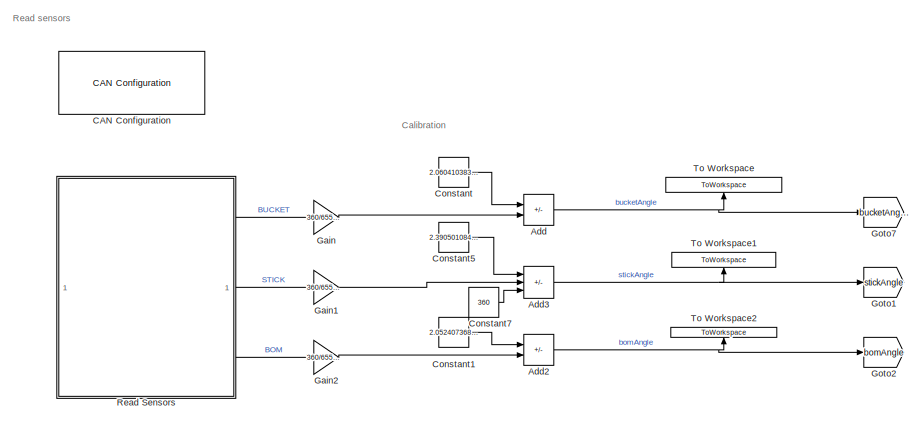
[diagram: root canvas - part 1/8, top left region]
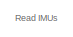
[diagram: root canvas - part 2/8, top right region]
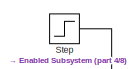
[diagram: root canvas - part 3/8, top right region]
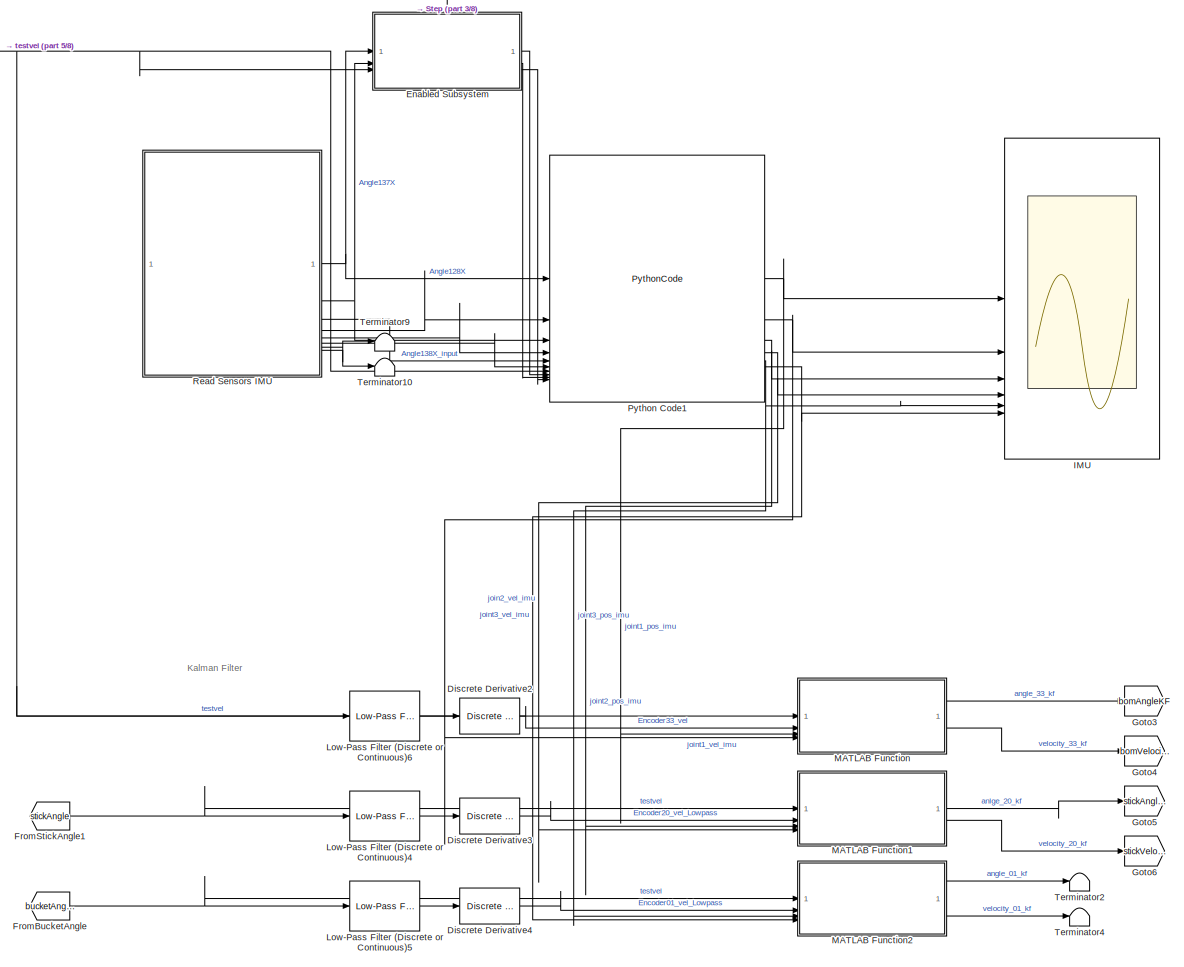
[diagram: root canvas - part 4/8, middle right region]
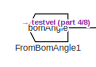
[diagram: root canvas - part 5/8, top center region]
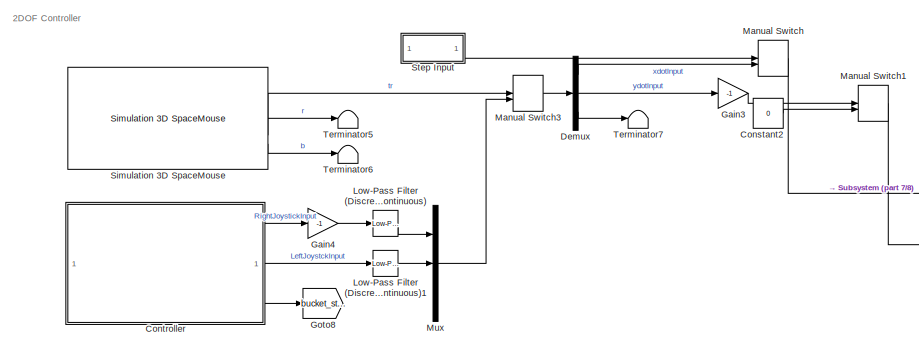
[diagram: root canvas - part 6/8, middle left region]
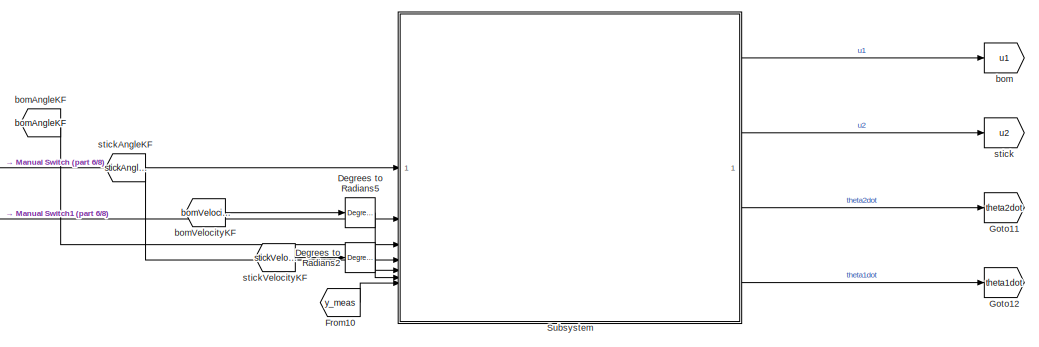
[diagram: root canvas - part 7/8, central region]
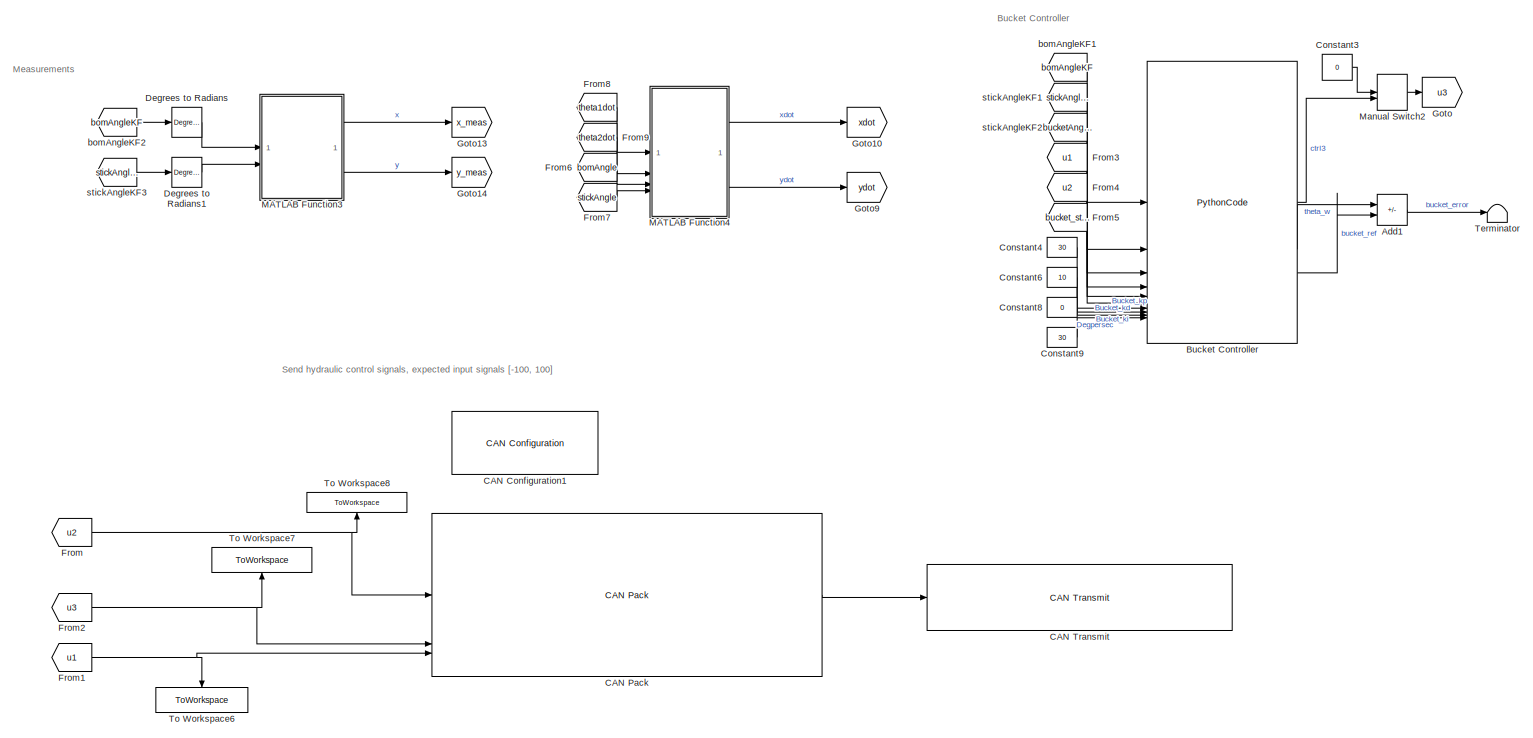
[diagram: root canvas - part 8/8, bottom left region]
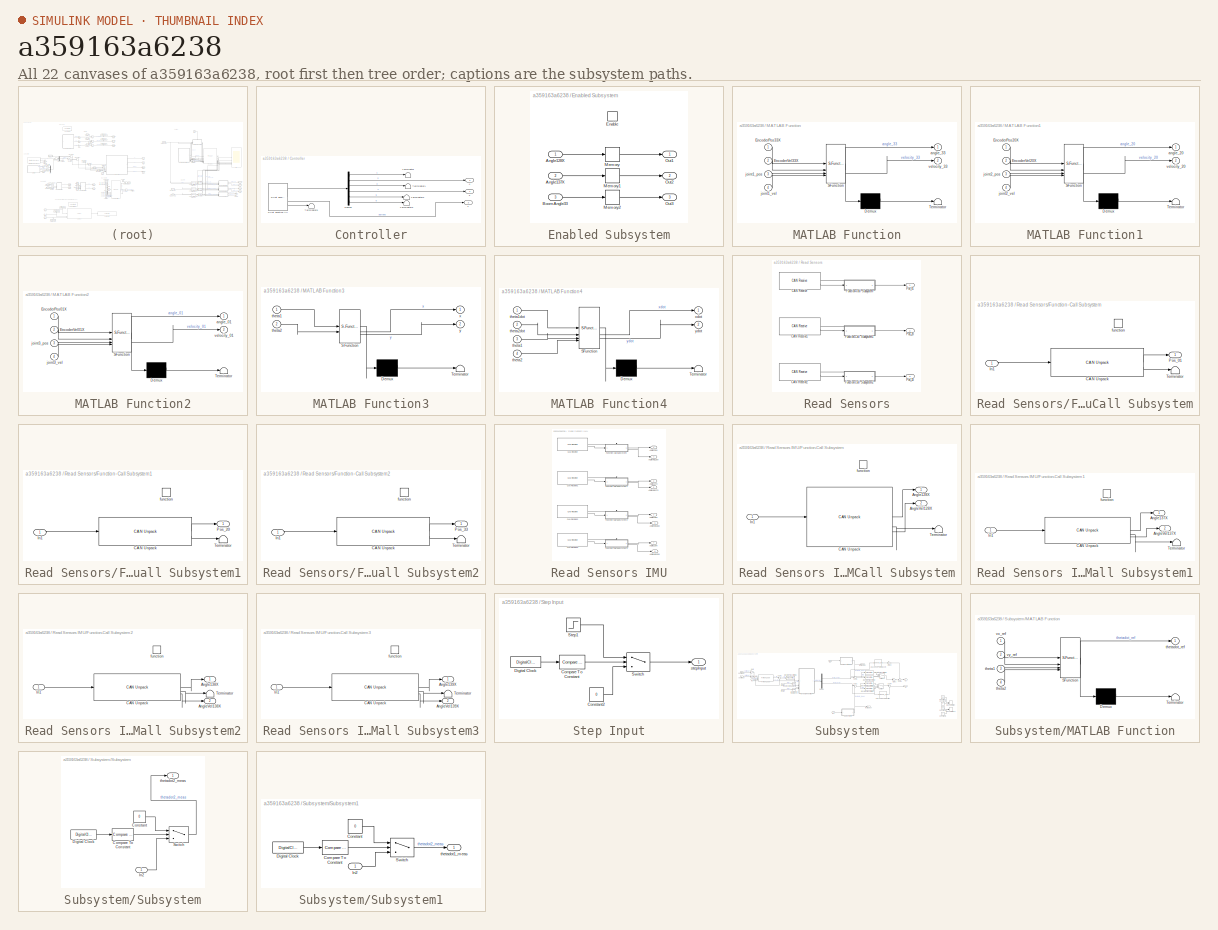
[diagram: thumbnail index - all 22 canvases of the model, root first then tree order]
MODEL slx_a359163a6238
KIND model
CONFIG AbsTol = auto
CONFIG EnableMultiTasking = off
CONFIG FixedStep = auto
CONFIG MaxStep = auto
CONFIG MinStep = auto
CONFIG RelTol = 1e-3
CONFIG SampleTimeConstraint = Unconstrained
CONFIG SolverName = VariableStepAuto
CONFIG StartTime = 0.0
CONFIG StopTime = inf
BLOCK [Sum] Add
  IconShape = rectangular
  Inputs = -+
BLOCK [Sum] Add1
  IconShape = rectangular
  Inputs = +-
BLOCK [Sum] Add2
  IconShape = rectangular
  Inputs = -+
BLOCK [Sum] Add3
  IconShape = rectangular
  Inputs = -++
BLOCK [PythonCode] Bucket Controller
  OutputCode = import numpy as np\nfrom numpy import sign, abs\n\n#### TUNING PARAMETERS\ndegpersec \nTs = 0.01\n\nBUCKET_STICK1 = 16\nBUCKET_STICK2 = 32\nif flag is None:\n    flag = 1\n\n## Bucket Control Parameters\nKp_bucket = Kp\nKi_bucket = Ki\nKd_bucket = Kd\n\n## Bucket controller\ncalc_thetaw = theta1 + theta2 + theta3\n\n\nif theta_ref is None:\n    theta_ref = -20\n\nif comp_flag_1 is None:\n    comp_flag_1 = 0\n\n\nif bucket_st...<+1492ch>
  SampleTime = 0.01
BLOCK [Reference] CAN Configuration  REF=canlib/CAN Configuration
  SourceBlock = canlib/CAN Configuration
  SourceType = CAN Configuration
BLOCK [Reference] CAN Configuration1  REF=canlib/CAN Configuration
  SourceBlock = canlib/CAN Configuration
  SourceType = CAN Configuration
BLOCK [Reference] CAN Pack  REF=canmsglib/CAN Pack
  LibrarySourceBlock = canlib/CAN Pack
  SourceBlock = canmsglib/CAN Pack
  SourceType = CAN Pack
BLOCK [Reference] CAN Transmit  REF=canlib/CAN Transmit
  SourceBlock = canlib/CAN Transmit
  SourceType = CAN Transmit
BLOCK [Constant] Constant
  Value = 2.060410383456638e+02
BLOCK [Constant] Constant1
  Value = 2.052407368979854e+02
BLOCK [Constant] Constant2
  Value = 0
BLOCK [Constant] Constant3
  Value = 0
BLOCK [Constant] Constant4
  Value = 30
BLOCK [Constant] Constant5
  Value = 2.390501084826040e+02+27.5
BLOCK [Constant] Constant6
  Value = 10
BLOCK [Constant] Constant7
  Value = 360
BLOCK [Constant] Constant8
  Value = 0
BLOCK [Constant] Constant9
  Value = 30
BLOCK [SubSystem] Controller
BLOCK [Outport] Controller/1
  IconDisplay = Signal name
  Port = 3
BLOCK [Outport] Controller/2
  IconDisplay = Signal name
BLOCK [Outport] Controller/4
  IconDisplay = Signal name
  Port = 2
BLOCK [Demux] Controller/Demux
  Outputs = 6
BLOCK [Reference] Controller/Pilot Joystick All  REF=aerolibanimutils/Pilot Joystick
  LibrarySourceBlock = aerolibanimutils/Pilot Joystick All
  SourceBlock = aerolibanimutils/Pilot Joystick
  SourceType = PilotJoystick
BLOCK [Terminator] Controller/Terminator
BLOCK [Terminator] Controller/Terminator1
BLOCK [Terminator] Controller/Terminator2
BLOCK [Terminator] Controller/Terminator3
BLOCK [Terminator] Controller/Terminator5
BLOCK [Reference] Degrees to Radians  REF=simulink_extras/Transformations/Degrees to
Radians
  SourceBlock = simulink_extras/Transformations/Degrees to\nRadians
  SourceType = DegreesToRadians
BLOCK [Reference] Degrees to Radians1  REF=simulink_extras/Transformations/Degrees to
Radians
  SourceBlock = simulink_extras/Transformations/Degrees to\nRadians
  SourceType = DegreesToRadians
BLOCK [Reference] Degrees to Radians2  REF=simulink_extras/Transformations/Degrees to
Radians
  SourceBlock = simulink_extras/Transformations/Degrees to\nRadians
  SourceType = DegreesToRadians
BLOCK [Reference] Degrees to Radians5  REF=simulink_extras/Transformations/Degrees to
Radians
  SourceBlock = simulink_extras/Transformations/Degrees to\nRadians
  SourceType = DegreesToRadians
BLOCK [Demux] Demux
  Outputs = 3
BLOCK [Reference] Discrete Derivative2  REF=simulink/Discrete/Discrete Derivative
  SourceBlock = simulink/Discrete/Discrete Derivative
  SourceType = Discrete Derivative
BLOCK [Reference] Discrete Derivative3  REF=simulink/Discrete/Discrete Derivative
  SourceBlock = simulink/Discrete/Discrete Derivative
  SourceType = Discrete Derivative
BLOCK [Reference] Discrete Derivative4  REF=simulink/Discrete/Discrete Derivative
  SourceBlock = simulink/Discrete/Discrete Derivative
  SourceType = Discrete Derivative
BLOCK [SubSystem] Enabled Subsystem
  TreatAsAtomicUnit = on
BLOCK [Inport] Enabled Subsystem/Angle128X
BLOCK [Inport] Enabled Subsystem/Angle137X
  Port = 2
BLOCK [Inport] Enabled Subsystem/BoomAngle33
  Port = 3
BLOCK [EnablePort] Enabled Subsystem/Enable
BLOCK [Memory] Enabled Subsystem/Memory
BLOCK [Memory] Enabled Subsystem/Memory1
BLOCK [Memory] Enabled Subsystem/Memory2
BLOCK [Outport] Enabled Subsystem/Out1
BLOCK [Outport] Enabled Subsystem/Out2
  Port = 2
BLOCK [Outport] Enabled Subsystem/Out3
  Port = 3
BLOCK [From] From
  GotoTag = u2
BLOCK [From] From1
  GotoTag = u1
BLOCK [From] From10
  GotoTag = y_meas
BLOCK [From] From2
  GotoTag = u3
BLOCK [From] From3
  GotoTag = u1
BLOCK [From] From4
  GotoTag = u2
BLOCK [From] From5
  GotoTag = bucket_stick_signal
BLOCK [From] From6
  GotoTag = bomAngle
BLOCK [From] From7
  GotoTag = stickAngle
BLOCK [From] From8
  GotoTag = theta1dot
BLOCK [From] From9
  GotoTag = theta2dot
BLOCK [From] FromBomAngle1
  GotoTag = bomAngle
BLOCK [From] FromBucketAngle
  GotoTag = bucketAngle
BLOCK [From] FromStickAngle1
  GotoTag = stickAngle
BLOCK [Gain] Gain
  Gain = 360/65535
BLOCK [Gain] Gain1
  Gain = 360/65535
BLOCK [Gain] Gain2
  Gain = 360/65535
BLOCK [Gain] Gain3
  Gain = -1
BLOCK [Gain] Gain4
  Gain = -1
BLOCK [Goto] Goto
  GotoTag = u3
BLOCK [Goto] Goto1
  GotoTag = stickAngle
BLOCK [Goto] Goto10
  GotoTag = xdot
BLOCK [Goto] Goto11
  GotoTag = theta2dot
BLOCK [Goto] Goto12
  GotoTag = theta1dot
BLOCK [Goto] Goto13
  GotoTag = x_meas
BLOCK [Goto] Goto14
  GotoTag = y_meas
BLOCK [Goto] Goto2
  GotoTag = bomAngle
BLOCK [Goto] Goto3
  GotoTag = bomAngleKF
BLOCK [Goto] Goto4
  GotoTag = bomVelocityKF
BLOCK [Goto] Goto5
  GotoTag = stickAngleKF
BLOCK [Goto] Goto6
  GotoTag = stickVelocityKF
BLOCK [Goto] Goto7
  GotoTag = bucketAngle
BLOCK [Goto] Goto8
  GotoTag = bucket_stick_signal
BLOCK [Goto] Goto9
  GotoTag = ydot
BLOCK [Scope] IMU
  ActiveDisplayYMaximum = 241.62685406904103
  ActiveDisplayYMinimum = 240.03476604985391
  Floating = off
  GraphicalSettings = {"AxesScalingProperties":{"AlignXAxis":"Center","AlignYAxis":"Center","AutoScaleXAxisLimits":false,"AxesScaling":"Manual","AxesScalingNumUpdates":10,"ExpandOnly":true,"ScaleAxesLimitsAtStop":false,"XAxisDataRange":100,"YAxisDataRange":80},"DisplayProperties":{"ColorOrder":["auto","auto","auto","auto","auto","auto","auto","auto","auto","auto","auto","auto","auto","auto","auto","auto","auto","auto",...<+2549ch>
  MultipleDisplayCache = [{"MaxYLimMag":271.3765664312109,"MaxYLimReal":241.62685406904103,"MinYLimMag":0,"MinYLimReal":240.03476604985391,"PlotAsMagnitudePhase":false,"ShowGrid":true,"ShowLegend":false,"Title":"%<SignalLabel>","YLabel":""}]
  NumInputPorts = 6
  ScopeFrameLocation = window
  WasSavedAsWebScope = on
  WindowPosition = [601.000000,310.000000,1414.000000,726.000000,]
BLOCK [Reference] Low-Pass Filter (Discrete or Continuous)  REF=eeGeneralControl/Low-Pass Filter
(Discrete or Continuous)
  LibrarySourceBlock = ee_sl_lib/General Control/Low-Pass Filter\n(Discrete or Continuous)
  SourceBlock = eeGeneralControl/Low-Pass Filter\n(Discrete or Continuous)
  SourceType = Low-Pass Filter (Discrete or Continuous)
BLOCK [Reference] Low-Pass Filter (Discrete or Continuous)1  REF=eeGeneralControl/Low-Pass Filter
(Discrete or Continuous)
  Commented = through
  LibrarySourceBlock = ee_sl_lib/General Control/Low-Pass Filter\n(Discrete or Continuous)
  SourceBlock = eeGeneralControl/Low-Pass Filter\n(Discrete or Continuous)
  SourceType = Low-Pass Filter (Discrete or Continuous)
BLOCK [Reference] Low-Pass Filter (Discrete or Continuous)4  REF=eeGeneralControl/Low-Pass Filter
(Discrete or Continuous)
  LibrarySourceBlock = ee_sl_lib/General Control/Low-Pass Filter\n(Discrete or Continuous)
  SourceBlock = eeGeneralControl/Low-Pass Filter\n(Discrete or Continuous)
  SourceType = Low-Pass Filter (Discrete or Continuous)
BLOCK [Reference] Low-Pass Filter (Discrete or Continuous)5  REF=eeGeneralControl/Low-Pass Filter
(Discrete or Continuous)
  LibrarySourceBlock = ee_sl_lib/General Control/Low-Pass Filter\n(Discrete or Continuous)
  SourceBlock = eeGeneralControl/Low-Pass Filter\n(Discrete or Continuous)
  SourceType = Low-Pass Filter (Discrete or Continuous)
BLOCK [Reference] Low-Pass Filter (Discrete or Continuous)6  REF=eeGeneralControl/Low-Pass Filter
(Discrete or Continuous)
  LibrarySourceBlock = ee_sl_lib/General Control/Low-Pass Filter\n(Discrete or Continuous)
  SourceBlock = eeGeneralControl/Low-Pass Filter\n(Discrete or Continuous)
  SourceType = Low-Pass Filter (Discrete or Continuous)
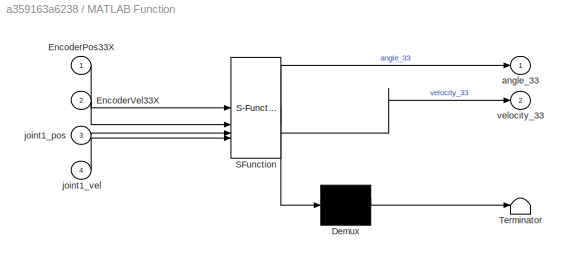
BLOCK [SubSystem] MATLAB Function
  ErrorFcn = Stateflow.Translate.translate
  PermitHierarchicalResolution = ExplicitOnly
  SFBlockType = MATLAB Function
  TreatAsAtomicUnit = on
BLOCK [Demux] MATLAB Function/ Demux 
  Outputs = 1
BLOCK [S-Function] MATLAB Function/ SFunction 
  EnableBusSupport = off
  FunctionName = sf_sfun
  PortCounts = [4 3]
  SFcnIsStateOwnerBlock = off
  SFunctionDeploymentMode = off
  Tag = Stateflow S-Function 2
BLOCK [Terminator] MATLAB Function/ Terminator 
BLOCK [Inport] MATLAB Function/EncoderPos33X
BLOCK [Inport] MATLAB Function/EncoderVel33X
  Port = 2
BLOCK [Outport] MATLAB Function/angle_33
BLOCK [Inport] MATLAB Function/joint1_pos
  Port = 3
BLOCK [Inport] MATLAB Function/joint1_vel
  Port = 4
BLOCK [Outport] MATLAB Function/velocity_33
  Port = 2
BLOCK [SubSystem] MATLAB Function1
  ErrorFcn = Stateflow.Translate.translate
  PermitHierarchicalResolution = ExplicitOnly
  SFBlockType = MATLAB Function
  TreatAsAtomicUnit = on
BLOCK [Demux] MATLAB Function1/ Demux 
  Outputs = 1
BLOCK [S-Function] MATLAB Function1/ SFunction 
  EnableBusSupport = off
  FunctionName = sf_sfun
  PortCounts = [4 3]
  SFcnIsStateOwnerBlock = off
  SFunctionDeploymentMode = off
  Tag = Stateflow S-Function 1
BLOCK [Terminator] MATLAB Function1/ Terminator 
BLOCK [Inport] MATLAB Function1/EncoderPos20X
BLOCK [Inport] MATLAB Function1/EncoderVel20X
  Port = 2
BLOCK [Outport] MATLAB Function1/angle_20
BLOCK [Inport] MATLAB Function1/joint2_pos
  Port = 3
BLOCK [Inport] MATLAB Function1/joint2_vel
  Port = 4
BLOCK [Outport] MATLAB Function1/velocity_20
  Port = 2
BLOCK [SubSystem] MATLAB Function2
  ErrorFcn = Stateflow.Translate.translate
  PermitHierarchicalResolution = ExplicitOnly
  SFBlockType = MATLAB Function
  TreatAsAtomicUnit = on
BLOCK [Demux] MATLAB Function2/ Demux 
  Outputs = 1
BLOCK [S-Function] MATLAB Function2/ SFunction 
  EnableBusSupport = off
  FunctionName = sf_sfun
  PortCounts = [4 3]
  SFcnIsStateOwnerBlock = off
  SFunctionDeploymentMode = off
  Tag = Stateflow S-Function 3
BLOCK [Terminator] MATLAB Function2/ Terminator 
BLOCK [Inport] MATLAB Function2/EncoderPos01X
BLOCK [Inport] MATLAB Function2/EncoderVel01X
  Port = 2
BLOCK [Outport] MATLAB Function2/angle_01
BLOCK [Inport] MATLAB Function2/joint3_pos
  Port = 3
BLOCK [Inport] MATLAB Function2/joint3_vel
  Port = 4
BLOCK [Outport] MATLAB Function2/velocity_01
  Port = 2
BLOCK [SubSystem] MATLAB Function3
  ErrorFcn = Stateflow.Translate.translate
  PermitHierarchicalResolution = ExplicitOnly
  SFBlockType = MATLAB Function
  TreatAsAtomicUnit = on
BLOCK [Demux] MATLAB Function3/ Demux 
  Outputs = 1
BLOCK [S-Function] MATLAB Function3/ SFunction 
  EnableBusSupport = off
  FunctionName = sf_sfun
  PortCounts = [2 3]
  SFcnIsStateOwnerBlock = off
  SFunctionDeploymentMode = off
  Tag = Stateflow S-Function 5
BLOCK [Terminator] MATLAB Function3/ Terminator 
BLOCK [Inport] MATLAB Function3/theta1
BLOCK [Inport] MATLAB Function3/theta2
  Port = 2
BLOCK [Outport] MATLAB Function3/x
BLOCK [Outport] MATLAB Function3/y
  Port = 2
BLOCK [SubSystem] MATLAB Function4
  ErrorFcn = Stateflow.Translate.translate
  PermitHierarchicalResolution = ExplicitOnly
  SFBlockType = MATLAB Function
  TreatAsAtomicUnit = on
BLOCK [Demux] MATLAB Function4/ Demux 
  Outputs = 1
BLOCK [S-Function] MATLAB Function4/ SFunction 
  EnableBusSupport = off
  FunctionName = sf_sfun
  PortCounts = [4 3]
  SFcnIsStateOwnerBlock = off
  SFunctionDeploymentMode = off
  Tag = Stateflow S-Function 6
BLOCK [Terminator] MATLAB Function4/ Terminator 
BLOCK [Inport] MATLAB Function4/theta1
  Port = 3
BLOCK [Inport] MATLAB Function4/theta1dot
BLOCK [Inport] MATLAB Function4/theta2
  Port = 4
BLOCK [Inport] MATLAB Function4/theta2dot
  Port = 2
BLOCK [Outport] MATLAB Function4/xdot
BLOCK [Outport] MATLAB Function4/ydot
  Port = 2
BLOCK [ManualSwitch] Manual Switch
  CurrentSetting = 0
BLOCK [ManualSwitch] Manual Switch1
BLOCK [ManualSwitch] Manual Switch2
  CurrentSetting = 0
BLOCK [ManualSwitch] Manual Switch3
  CurrentSetting = 0
BLOCK [Mux] Mux
  DisplayOption = bar
  Inputs = 3
BLOCK [PythonCode] Python Code1
  OutputCode = # Computation\n\n#print(Angle128X)\n\nif Angle128X > 180:\n    Angle128X = abs(Angle128X) - 360\n    \nif Angle137X < 20:\n    Angle137X = abs(Angle137X)+360\n    \nif Angle138X > 270:\n    Angle138X = abs(Angle138X) - 360\n    \n#print("///")\n#print(Angle128X)\n\nprint(Angle128Xp)\nprint(Angle137Xp)\nprint(Encoder33Xp)\n    \njoint1_pos = Angle137X -270 + Angle128X - (Angle137Xp-270 + Angle128Xp - Encoder33Xp)\njoin...<+159ch>
  SampleTime = 0.01
BLOCK [SubSystem] Read Sensors
BLOCK [SubSystem] Read Sensors IMU
BLOCK [Outport] Read Sensors IMU/Angle128X
BLOCK [Outport] Read Sensors IMU/Angle137X
  Port = 2
BLOCK [Outport] Read Sensors IMU/Angle138X
  Port = 3
BLOCK [Outport] Read Sensors IMU/Angle139X
  Port = 7
BLOCK [Outport] Read Sensors IMU/AngleVel128X
  Port = 4
BLOCK [Outport] Read Sensors IMU/AngleVel137X
  Port = 5
BLOCK [Outport] Read Sensors IMU/AngleVel138X
  Port = 6
BLOCK [Outport] Read Sensors IMU/AngleVel139X
  Port = 8
BLOCK [Reference] Read Sensors IMU/CAN Receive  REF=canlib/CAN Receive
  SourceBlock = canlib/CAN Receive
  SourceType = CAN Receive
BLOCK [Reference] Read Sensors IMU/CAN Receive1  REF=canlib/CAN Receive
  SourceBlock = canlib/CAN Receive
  SourceType = CAN Receive
BLOCK [Reference] Read Sensors IMU/CAN Receive2  REF=canlib/CAN Receive
  SourceBlock = canlib/CAN Receive
  SourceType = CAN Receive
BLOCK [Reference] Read Sensors IMU/CAN Receive3  REF=canlib/CAN Receive
  SourceBlock = canlib/CAN Receive
  SourceType = CAN Receive
BLOCK [SubSystem] Read Sensors IMU/Function-Call Subsystem
  TreatAsAtomicUnit = on
BLOCK [Outport] Read Sensors IMU/Function-Call Subsystem/Angle128X
BLOCK [Outport] Read Sensors IMU/Function-Call Subsystem/AngleVel128X
  Port = 2
BLOCK [Reference] Read Sensors IMU/Function-Call Subsystem/CAN Unpack  REF=canmsglib/CAN Unpack
  LibrarySourceBlock = canlib/CAN Unpack
  SourceBlock = canmsglib/CAN Unpack
  SourceType = CAN Unpack
BLOCK [Inport] Read Sensors IMU/Function-Call Subsystem/In1
BLOCK [Terminator] Read Sensors IMU/Function-Call Subsystem/Terminator
BLOCK [TriggerPort] Read Sensors IMU/Function-Call Subsystem/function
  StatesWhenEnabling = held
  TriggerType = function-call
  VariantControl = (inherit)
BLOCK [SubSystem] Read Sensors IMU/Function-Call Subsystem1
  TreatAsAtomicUnit = on
BLOCK [Outport] Read Sensors IMU/Function-Call Subsystem1/Angle137X
BLOCK [Outport] Read Sensors IMU/Function-Call Subsystem1/AngleVel137X
  Port = 2
BLOCK [Reference] Read Sensors IMU/Function-Call Subsystem1/CAN Unpack  REF=canmsglib/CAN Unpack
  LibrarySourceBlock = canlib/CAN Unpack
  SourceBlock = canmsglib/CAN Unpack
  SourceType = CAN Unpack
BLOCK [Inport] Read Sensors IMU/Function-Call Subsystem1/In1
BLOCK [Terminator] Read Sensors IMU/Function-Call Subsystem1/Terminator
BLOCK [TriggerPort] Read Sensors IMU/Function-Call Subsystem1/function
  StatesWhenEnabling = held
  TriggerType = function-call
  VariantControl = (inherit)
BLOCK [SubSystem] Read Sensors IMU/Function-Call Subsystem2
  TreatAsAtomicUnit = on
BLOCK [Outport] Read Sensors IMU/Function-Call Subsystem2/Angle138X
BLOCK [Outport] Read Sensors IMU/Function-Call Subsystem2/AngleVel138X
  Port = 2
BLOCK [Reference] Read Sensors IMU/Function-Call Subsystem2/CAN Unpack  REF=canmsglib/CAN Unpack
  LibrarySourceBlock = canlib/CAN Unpack
  SourceBlock = canmsglib/CAN Unpack
  SourceType = CAN Unpack
BLOCK [Inport] Read Sensors IMU/Function-Call Subsystem2/In1
BLOCK [Terminator] Read Sensors IMU/Function-Call Subsystem2/Terminator
BLOCK [TriggerPort] Read Sensors IMU/Function-Call Subsystem2/function
  StatesWhenEnabling = held
  TriggerType = function-call
  VariantControl = (inherit)
BLOCK [SubSystem] Read Sensors IMU/Function-Call Subsystem3
  TreatAsAtomicUnit = on
BLOCK [Outport] Read Sensors IMU/Function-Call Subsystem3/Angle139X
BLOCK [Outport] Read Sensors IMU/Function-Call Subsystem3/AngleVel139X
  Port = 2
BLOCK [Reference] Read Sensors IMU/Function-Call Subsystem3/CAN Unpack  REF=canmsglib/CAN Unpack
  LibrarySourceBlock = canlib/CAN Unpack
  SourceBlock = canmsglib/CAN Unpack
  SourceType = CAN Unpack
BLOCK [Inport] Read Sensors IMU/Function-Call Subsystem3/In1
BLOCK [Terminator] Read Sensors IMU/Function-Call Subsystem3/Terminator
BLOCK [TriggerPort] Read Sensors IMU/Function-Call Subsystem3/function
  StatesWhenEnabling = held
  TriggerType = function-call
  VariantControl = (inherit)
BLOCK [Reference] Read Sensors/CAN Receive  REF=canlib/CAN Receive
  SourceBlock = canlib/CAN Receive
  SourceType = CAN Receive
BLOCK [Reference] Read Sensors/CAN Receive1  REF=canlib/CAN Receive
  SourceBlock = canlib/CAN Receive
  SourceType = CAN Receive
BLOCK [Reference] Read Sensors/CAN Receive2  REF=canlib/CAN Receive
  SourceBlock = canlib/CAN Receive
  SourceType = CAN Receive
BLOCK [SubSystem] Read Sensors/Function-Call Subsystem
  TreatAsAtomicUnit = on
BLOCK [Reference] Read Sensors/Function-Call Subsystem/CAN Unpack  REF=canmsglib/CAN Unpack
  LibrarySourceBlock = canlib/CAN Unpack
  SourceBlock = canmsglib/CAN Unpack
  SourceType = CAN Unpack
BLOCK [Inport] Read Sensors/Function-Call Subsystem/In1
BLOCK [Outport] Read Sensors/Function-Call Subsystem/Pos_01
BLOCK [Terminator] Read Sensors/Function-Call Subsystem/Terminator
BLOCK [TriggerPort] Read Sensors/Function-Call Subsystem/function
  StatesWhenEnabling = held
  TriggerType = function-call
  VariantControl = (inherit)
BLOCK [SubSystem] Read Sensors/Function-Call Subsystem1
  TreatAsAtomicUnit = on
BLOCK [Reference] Read Sensors/Function-Call Subsystem1/CAN Unpack  REF=canmsglib/CAN Unpack
  LibrarySourceBlock = canlib/CAN Unpack
  SourceBlock = canmsglib/CAN Unpack
  SourceType = CAN Unpack
BLOCK [Inport] Read Sensors/Function-Call Subsystem1/In1
BLOCK [Outport] Read Sensors/Function-Call Subsystem1/Pos_20
BLOCK [Terminator] Read Sensors/Function-Call Subsystem1/Terminator
BLOCK [TriggerPort] Read Sensors/Function-Call Subsystem1/function
  StatesWhenEnabling = held
  TriggerType = function-call
  VariantControl = (inherit)
BLOCK [SubSystem] Read Sensors/Function-Call Subsystem2
  TreatAsAtomicUnit = on
BLOCK [Reference] Read Sensors/Function-Call Subsystem2/CAN Unpack  REF=canmsglib/CAN Unpack
  LibrarySourceBlock = canlib/CAN Unpack
  SourceBlock = canmsglib/CAN Unpack
  SourceType = CAN Unpack
BLOCK [Inport] Read Sensors/Function-Call Subsystem2/In1
BLOCK [Outport] Read Sensors/Function-Call Subsystem2/Pos_33
BLOCK [Terminator] Read Sensors/Function-Call Subsystem2/Terminator
BLOCK [TriggerPort] Read Sensors/Function-Call Subsystem2/function
  StatesWhenEnabling = held
  TriggerType = function-call
  VariantControl = (inherit)
BLOCK [Outport] Read Sensors/Pos_01
BLOCK [Outport] Read Sensors/Pos_20
  Port = 2
BLOCK [Outport] Read Sensors/Pos_33
  Port = 3
BLOCK [Reference] Simulation 3D SpaceMouse  REF=sl3dlib/Simulation 3D/Hardware Interface/Simulation 3D SpaceMouse
  Commented = on
  SourceBlock = sl3dlib/Simulation 3D/Hardware Interface/Simulation 3D SpaceMouse
  SourceType = Simulation 3D SpaceMouse
BLOCK [Step] Step
  After = 0
  Before = 1
  SampleTime = 0
  Time = 0.001
BLOCK [SubSystem] Step Input
BLOCK [Reference] Step Input/Compare To Constant  REF=simulink/Logic and Bit
Operations/Compare
To Constant
  SourceBlock = simulink/Logic and Bit\nOperations/Compare\nTo Constant
  SourceType = Compare To Constant
BLOCK [Constant] Step Input/Constant2
  Value = 0
BLOCK [DigitalClock] Step Input/Digital Clock
  SampleTime = 0.01
BLOCK [Step] Step Input/Step1
  SampleTime = 0.01
BLOCK [Switch] Step Input/Switch
  Criteria = u2 > Threshold
  InputSameDT = off
  SaturateOnIntegerOverflow = off
BLOCK [Outport] Step Input/stepInput
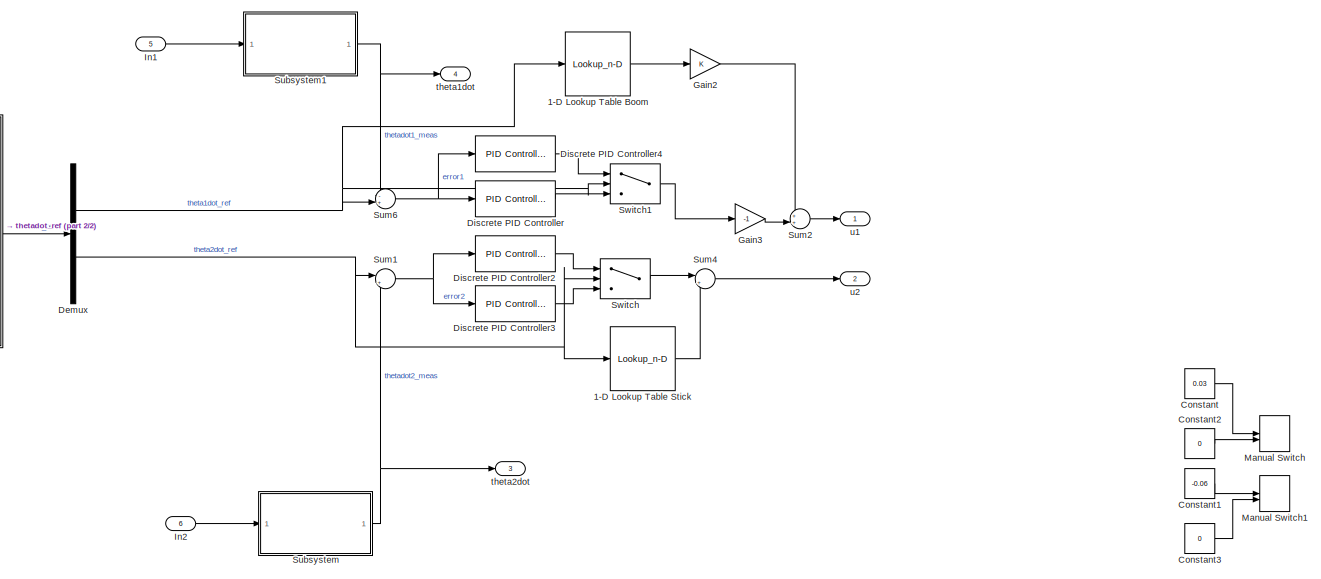
[diagram: Subsystem - part 1/2, right side, full height]
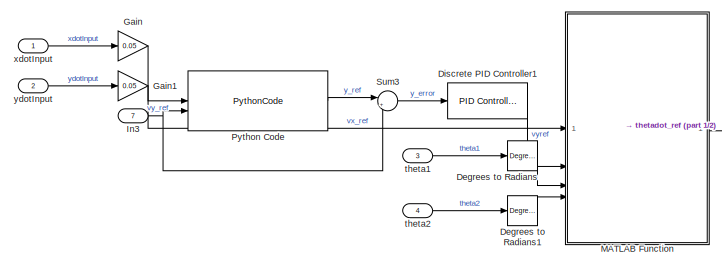
[diagram: Subsystem - part 2/2, middle left region]
BLOCK [SubSystem] Subsystem
BLOCK [Lookup_n-D] Subsystem/1-D Lookup Table Boom
  BreakpointsForDimension1 = Boom_Vel_LUT
  InputPortMap = u0
  InternalRulePriority = Speed
  NumberOfTableDimensions = 1
  RndMeth = Simplest
  Table = Boom_Cmd_LUT
BLOCK [Lookup_n-D] Subsystem/1-D Lookup Table Stick
  BreakpointsForDimension1 = Stick_Vel_LUT
  InputPortMap = u0
  InternalRulePriority = Speed
  NumberOfTableDimensions = 1
  RndMeth = Simplest
  Table = Stick_Cmd_LUT
BLOCK [Constant] Subsystem/Constant
  Commented = on
  Value = 0.03
BLOCK [Constant] Subsystem/Constant1
  Commented = on
  Value = -0.06
BLOCK [Constant] Subsystem/Constant2
  Commented = on
  Value = 0
BLOCK [Constant] Subsystem/Constant3
  Commented = on
  Value = 0
BLOCK [Reference] Subsystem/Degrees to Radians  REF=simulink_extras/Transformations/Degrees to
Radians
  SourceBlock = simulink_extras/Transformations/Degrees to\nRadians
  SourceType = DegreesToRadians
BLOCK [Reference] Subsystem/Degrees to Radians1  REF=simulink_extras/Transformations/Degrees to
Radians
  SourceBlock = simulink_extras/Transformations/Degrees to\nRadians
  SourceType = DegreesToRadians
BLOCK [Demux] Subsystem/Demux
  Outputs = 2
BLOCK [Reference] Subsystem/Discrete PID Controller  REF=slpidlib/PID Controller
  LibrarySourceBlock = simulink/Discrete/Discrete PID Controller
  SourceBlock = slpidlib/PID Controller
  SourceType = PID 1dof
BLOCK [Reference] Subsystem/Discrete PID Controller1  REF=slpidlib/PID Controller
  LibrarySourceBlock = simulink/Discrete/Discrete PID Controller
  SourceBlock = slpidlib/PID Controller
  SourceType = PID 1dof
BLOCK [Reference] Subsystem/Discrete PID Controller2  REF=slpidlib/PID Controller
  LibrarySourceBlock = simulink/Discrete/Discrete PID Controller
  SourceBlock = slpidlib/PID Controller
  SourceType = PID 1dof
BLOCK [Reference] Subsystem/Discrete PID Controller3  REF=slpidlib/PID Controller
  LibrarySourceBlock = simulink/Discrete/Discrete PID Controller
  SourceBlock = slpidlib/PID Controller
  SourceType = PID 1dof
BLOCK [Reference] Subsystem/Discrete PID Controller4  REF=slpidlib/PID Controller
  LibrarySourceBlock = simulink/Discrete/Discrete PID Controller
  SourceBlock = slpidlib/PID Controller
  SourceType = PID 1dof
BLOCK [Gain] Subsystem/Gain
  Gain = 0.05
BLOCK [Gain] Subsystem/Gain1
  Gain = 0.05
BLOCK [Gain] Subsystem/Gain2
BLOCK [Gain] Subsystem/Gain3
  Gain = -1
BLOCK [Inport] Subsystem/In1
  Port = 5
BLOCK [Inport] Subsystem/In2
  Port = 6
BLOCK [Inport] Subsystem/In3
  Port = 7
BLOCK [SubSystem] Subsystem/MATLAB Function
  ErrorFcn = Stateflow.Translate.translate
  PermitHierarchicalResolution = ExplicitOnly
  SFBlockType = MATLAB Function
  TreatAsAtomicUnit = on
BLOCK [Demux] Subsystem/MATLAB Function/ Demux 
  Outputs = 1
BLOCK [S-Function] Subsystem/MATLAB Function/ SFunction 
  EnableBusSupport = off
  FunctionName = sf_sfun
  PortCounts = [4 2]
  SFcnIsStateOwnerBlock = off
  SFunctionDeploymentMode = off
  Tag = Stateflow S-Function 4
BLOCK [Terminator] Subsystem/MATLAB Function/ Terminator 
BLOCK [Inport] Subsystem/MATLAB Function/theta1
  Port = 3
BLOCK [Inport] Subsystem/MATLAB Function/theta2
  Port = 4
BLOCK [Outport] Subsystem/MATLAB Function/thetadot_ref
BLOCK [Inport] Subsystem/MATLAB Function/vx_ref
BLOCK [Inport] Subsystem/MATLAB Function/vy_ref
  Port = 2
BLOCK [ManualSwitch] Subsystem/Manual Switch
  Commented = on
  CurrentSetting = 0
BLOCK [ManualSwitch] Subsystem/Manual Switch1
  Commented = on
  CurrentSetting = 0
BLOCK [PythonCode] Subsystem/Python Code
  OutputCode = import numpy as np\nfrom numpy import sign\n"""\nReference handler for velocity controller.\n\nInput: desired velocity in y-direction\nOutput: y-level reference \n\ny_ref: persistent\nflag: persistent\n\n"""\n\n# stick tolerance depending on expected noise level of joystick\nstick_tolerance = 0.01\n\n# desired reference change in m/s when stick is fully deflected\nmeterspersec = np.abs(stick_signal)\nTs = 0.01\n\n###...<+562ch>
BLOCK [SubSystem] Subsystem/Subsystem
BLOCK [Reference] Subsystem/Subsystem/Compare To Constant  REF=simulink/Logic and Bit
Operations/Compare
To Constant
  SourceBlock = simulink/Logic and Bit\nOperations/Compare\nTo Constant
  SourceType = Compare To Constant
BLOCK [Constant] Subsystem/Subsystem/Constant
  Value = 0
BLOCK [DigitalClock] Subsystem/Subsystem/Digital Clock
  SampleTime = 0.01
BLOCK [Inport] Subsystem/Subsystem/In2
BLOCK [Switch] Subsystem/Subsystem/Switch
  Criteria = u2 > Threshold
  InputSameDT = off
  SaturateOnIntegerOverflow = off
BLOCK [Outport] Subsystem/Subsystem/thetadot2_meas
BLOCK [SubSystem] Subsystem/Subsystem1
BLOCK [Reference] Subsystem/Subsystem1/Compare To Constant  REF=simulink/Logic and Bit
Operations/Compare
To Constant
  SourceBlock = simulink/Logic and Bit\nOperations/Compare\nTo Constant
  SourceType = Compare To Constant
BLOCK [Constant] Subsystem/Subsystem1/Constant
  Value = 0
BLOCK [DigitalClock] Subsystem/Subsystem1/Digital Clock
  SampleTime = 0.01
BLOCK [Inport] Subsystem/Subsystem1/In2
BLOCK [Switch] Subsystem/Subsystem1/Switch
  Criteria = u2 > Threshold
  InputSameDT = off
  SaturateOnIntegerOverflow = off
BLOCK [Outport] Subsystem/Subsystem1/thetadot1_meas
BLOCK [Sum] Subsystem/Sum1
  Inputs = |+-
BLOCK [Sum] Subsystem/Sum2
  Inputs = ++|
BLOCK [Sum] Subsystem/Sum3
  Inputs = |+-
BLOCK [Sum] Subsystem/Sum4
  Inputs = |++
BLOCK [Sum] Subsystem/Sum6
  Inputs = -+|
BLOCK [Switch] Subsystem/Switch
  Criteria = u2 > Threshold
  InputSameDT = off
  SaturateOnIntegerOverflow = off
BLOCK [Switch] Subsystem/Switch1
  Criteria = u2 > Threshold
  InputSameDT = off
  SaturateOnIntegerOverflow = off
BLOCK [Inport] Subsystem/theta1
  Port = 3
BLOCK [Outport] Subsystem/theta1dot
  Port = 4
BLOCK [Inport] Subsystem/theta2
  Port = 4
BLOCK [Outport] Subsystem/theta2dot
  Port = 3
BLOCK [Outport] Subsystem/u1
BLOCK [Outport] Subsystem/u2
  Port = 2
BLOCK [Inport] Subsystem/xdotInput
BLOCK [Inport] Subsystem/ydotInput
  Port = 2
BLOCK [Terminator] Terminator
BLOCK [Terminator] Terminator10
BLOCK [Terminator] Terminator2
BLOCK [Terminator] Terminator4
BLOCK [Terminator] Terminator5
BLOCK [Terminator] Terminator6
BLOCK [Terminator] Terminator7
BLOCK [Terminator] Terminator9
BLOCK [ToWorkspace] To Workspace
  FixptAsFi = on
  MaxDataPoints = inf
  NameLocation = right
  SampleTime = -1
  SaveFormat = Timeseries
  VariableName = bucketAngle
BLOCK [ToWorkspace] To Workspace1
  FixptAsFi = on
  MaxDataPoints = inf
  NameLocation = right
  SampleTime = -1
  SaveFormat = Timeseries
  VariableName = stickAngle
BLOCK [ToWorkspace] To Workspace2
  FixptAsFi = on
  MaxDataPoints = inf
  NameLocation = right
  SampleTime = -1
  SaveFormat = Timeseries
  VariableName = bomAngle
BLOCK [ToWorkspace] To Workspace6
  FixptAsFi = on
  MaxDataPoints = inf
  NameLocation = left
  SampleTime = -1
  SaveFormat = Timeseries
  VariableName = bomInput
BLOCK [ToWorkspace] To Workspace7
  FixptAsFi = on
  MaxDataPoints = inf
  NameLocation = right
  SampleTime = -1
  SaveFormat = Timeseries
  VariableName = bucketInput
BLOCK [ToWorkspace] To Workspace8
  FixptAsFi = on
  MaxDataPoints = inf
  NameLocation = right
  SampleTime = -1
  SaveFormat = Timeseries
  VariableName = stickInput
BLOCK [Goto] bom
  GotoTag = u1
  NameLocation = top
BLOCK [From] bomAngleKF
  GotoTag = bomAngleKF
BLOCK [From] bomAngleKF1
  GotoTag = bomAngleKF
BLOCK [From] bomAngleKF2
  GotoTag = bomAngleKF
BLOCK [From] bomVelocityKF
  GotoTag = bomVelocityKF
BLOCK [Goto] stick
  GotoTag = u2
BLOCK [From] stickAngleKF
  GotoTag = stickAngleKF
BLOCK [From] stickAngleKF1
  GotoTag = stickAngleKF
BLOCK [From] stickAngleKF2
  GotoTag = bucketAngle
BLOCK [From] stickAngleKF3
  GotoTag = stickAngleKF
BLOCK [From] stickVelocityKF
  GotoTag = stickVelocityKF
ANNOTATION (root): 2DOF Controller
ANNOTATION (root): Bucket Controller
ANNOTATION (root): Calibration
ANNOTATION (root): Kalman Filter
ANNOTATION (root): Measurements
ANNOTATION (root): Read IMUs
ANNOTATION (root): Read sensors
ANNOTATION (root): Send hydraulic control signals, expected input signals [-100, 100]
LINE Add1:1 -> Terminator:1
NET Add2:1 -> Goto2:1, To Workspace2:1
NET Add3:1 -> Goto1:1, To Workspace1:1
NET Add:1 -> Goto7:1, To Workspace:1
LINE Bucket Controller:1 -> Manual Switch2:2
LINE Bucket Controller:2 -> Add1:1
LINE Bucket Controller:3 -> Add1:2
LINE CAN Pack:1 -> CAN Transmit:1
LINE Constant1:1 -> Add2:1
LINE Constant2:1 -> Manual Switch1:2
LINE Constant3:1 -> Manual Switch2:1
LINE Constant4:1 -> Bucket Controller:7
LINE Constant5:1 -> Add3:1
LINE Constant6:1 -> Bucket Controller:8
LINE Constant7:1 -> Add3:3
LINE Constant8:1 -> Bucket Controller:9
LINE Constant9:1 -> Bucket Controller:10
LINE Constant:1 -> Add:1
LINE Controller/Demux:1 -> Controller/Terminator:1
LINE Controller/Demux:2 -> Controller/4:1
LINE Controller/Demux:3 -> Controller/Terminator1:1
LINE Controller/Demux:4 -> Controller/2:1
LINE Controller/Demux:5 -> Controller/Terminator2:1
LINE Controller/Demux:6 -> Controller/Terminator3:1
LINE Controller/Pilot Joystick All:1 -> Controller/Demux:1
LINE Controller/Pilot Joystick All:2 -> Controller/1:1
LINE Controller/Pilot Joystick All:3 -> Controller/Terminator5:1
LINE Controller:1 -> Gain4:1
LINE Controller:2 -> Low-Pass Filter (Discrete or Continuous)1:1
LINE Controller:3 -> Goto8:1
LINE Degrees to Radians1:1 -> MATLAB Function3:2
LINE Degrees to Radians2:1 -> Subsystem:6
LINE Degrees to Radians5:1 -> Subsystem:5
LINE Degrees to Radians:1 -> MATLAB Function3:1
LINE Demux:1 -> Manual Switch:2
LINE Demux:2 -> Gain3:1
LINE Demux:3 -> Terminator7:1
LINE Discrete Derivative2:1 -> MATLAB Function:2
LINE Discrete Derivative3:1 -> MATLAB Function1:2
LINE Discrete Derivative4:1 -> MATLAB Function2:2
LINE Enabled Subsystem/Angle128X:1 -> Enabled Subsystem/Memory:1
LINE Enabled Subsystem/Angle137X:1 -> Enabled Subsystem/Memory1:1
LINE Enabled Subsystem/BoomAngle33:1 -> Enabled Subsystem/Memory2:1
LINE Enabled Subsystem/Memory1:1 -> Enabled Subsystem/Out2:1
LINE Enabled Subsystem/Memory2:1 -> Enabled Subsystem/Out3:1
LINE Enabled Subsystem/Memory:1 -> Enabled Subsystem/Out1:1
LINE Enabled Subsystem:1 -> Python Code1:8
LINE Enabled Subsystem:2 -> Python Code1:9
LINE Enabled Subsystem:3 -> Python Code1:10
LINE From10:1 -> Subsystem:7
NET From1:1 -> CAN Pack:6, To Workspace6:1
NET From2:1 -> CAN Pack:4, To Workspace7:1
LINE From3:1 -> Bucket Controller:4
LINE From4:1 -> Bucket Controller:5
LINE From5:1 -> Bucket Controller:6
LINE From6:1 -> MATLAB Function4:3
LINE From7:1 -> MATLAB Function4:4
LINE From8:1 -> MATLAB Function4:1
LINE From9:1 -> MATLAB Function4:2
NET From:1 -> CAN Pack:1, To Workspace8:1
NET FromBomAngle1:1 -> Enabled Subsystem:3, Low-Pass Filter (Discrete or Continuous)6:1, MATLAB Function:1, Python Code1:7
NET FromBucketAngle:1 -> Low-Pass Filter (Discrete or Continuous)5:1, MATLAB Function2:1
NET FromStickAngle1:1 -> Low-Pass Filter (Discrete or Continuous)4:1, MATLAB Function1:1
LINE Gain1:1 -> Add3:2
LINE Gain2:1 -> Add2:2
LINE Gain3:1 -> Manual Switch1:1
LINE Gain4:1 -> Low-Pass Filter (Discrete or Continuous):1
LINE Gain:1 -> Add:2
LINE Low-Pass Filter (Discrete or Continuous)1:1 -> Mux:2
LINE Low-Pass Filter (Discrete or Continuous)4:1 -> Discrete Derivative3:1
LINE Low-Pass Filter (Discrete or Continuous)5:1 -> Discrete Derivative4:1
LINE Low-Pass Filter (Discrete or Continuous)6:1 -> Discrete Derivative2:1
LINE Low-Pass Filter (Discrete or Continuous):1 -> Mux:1
LINE MATLAB Function1:1 -> Goto5:1
LINE MATLAB Function1:2 -> Goto6:1
LINE MATLAB Function2:1 -> Terminator2:1
LINE MATLAB Function2:2 -> Terminator4:1
LINE MATLAB Function3:1 -> Goto13:1
LINE MATLAB Function3:2 -> Goto14:1
LINE MATLAB Function4:1 -> Goto10:1
LINE MATLAB Function4:2 -> Goto9:1
LINE MATLAB Function:1 -> Goto3:1
LINE MATLAB Function:2 -> Goto4:1
LINE Manual Switch1:1 -> Subsystem:2
LINE Manual Switch2:1 -> Goto:1
LINE Manual Switch3:1 -> Demux:1
LINE Manual Switch:1 -> Subsystem:1
LINE Mux:1 -> Manual Switch3:2
NET Python Code1:1 -> IMU:1, MATLAB Function:3
NET Python Code1:2 -> IMU:2, MATLAB Function:4
NET Python Code1:3 -> IMU:3, MATLAB Function1:3
NET Python Code1:4 -> IMU:4, MATLAB Function1:4
NET Python Code1:5 -> IMU:5, MATLAB Function2:3
NET Python Code1:6 -> IMU:6, MATLAB Function2:4
LINE Read Sensors IMU/CAN Receive1:1 -> Read Sensors IMU/Function-Call Subsystem1:trigger
LINE Read Sensors IMU/CAN Receive1:2 -> Read Sensors IMU/Function-Call Subsystem1:1
LINE Read Sensors IMU/CAN Receive2:1 -> Read Sensors IMU/Function-Call Subsystem2:trigger
LINE Read Sensors IMU/CAN Receive2:2 -> Read Sensors IMU/Function-Call Subsystem2:1
LINE Read Sensors IMU/CAN Receive3:1 -> Read Sensors IMU/Function-Call Subsystem3:trigger
LINE Read Sensors IMU/CAN Receive3:2 -> Read Sensors IMU/Function-Call Subsystem3:1
LINE Read Sensors IMU/CAN Receive:1 -> Read Sensors IMU/Function-Call Subsystem:trigger
LINE Read Sensors IMU/CAN Receive:2 -> Read Sensors IMU/Function-Call Subsystem:1
LINE Read Sensors IMU/Function-Call Subsystem/CAN Unpack:1 -> Read Sensors IMU/Function-Call Subsystem/Angle128X:1
LINE Read Sensors IMU/Function-Call Subsystem/CAN Unpack:2 -> Read Sensors IMU/Function-Call Subsystem/Terminator:1
LINE Read Sensors IMU/Function-Call Subsystem/CAN Unpack:3 -> Read Sensors IMU/Function-Call Subsystem/AngleVel128X:1
LINE Read Sensors IMU/Function-Call Subsystem/In1:1 -> Read Sensors IMU/Function-Call Subsystem/CAN Unpack:1
LINE Read Sensors IMU/Function-Call Subsystem1/CAN Unpack:1 -> Read Sensors IMU/Function-Call Subsystem1/Angle137X:1
LINE Read Sensors IMU/Function-Call Subsystem1/CAN Unpack:2 -> Read Sensors IMU/Function-Call Subsystem1/Terminator:1
LINE Read Sensors IMU/Function-Call Subsystem1/CAN Unpack:3 -> Read Sensors IMU/Function-Call Subsystem1/AngleVel137X:1
LINE Read Sensors IMU/Function-Call Subsystem1/In1:1 -> Read Sensors IMU/Function-Call Subsystem1/CAN Unpack:1
LINE Read Sensors IMU/Function-Call Subsystem1:1 -> Read Sensors IMU/Angle137X:1
LINE Read Sensors IMU/Function-Call Subsystem1:2 -> Read Sensors IMU/AngleVel137X:1
LINE Read Sensors IMU/Function-Call Subsystem2/CAN Unpack:1 -> Read Sensors IMU/Function-Call Subsystem2/Angle138X:1
LINE Read Sensors IMU/Function-Call Subsystem2/CAN Unpack:2 -> Read Sensors IMU/Function-Call Subsystem2/Terminator:1
LINE Read Sensors IMU/Function-Call Subsystem2/CAN Unpack:3 -> Read Sensors IMU/Function-Call Subsystem2/AngleVel138X:1
LINE Read Sensors IMU/Function-Call Subsystem2/In1:1 -> Read Sensors IMU/Function-Call Subsystem2/CAN Unpack:1
LINE Read Sensors IMU/Function-Call Subsystem2:1 -> Read Sensors IMU/Angle138X:1
LINE Read Sensors IMU/Function-Call Subsystem2:2 -> Read Sensors IMU/AngleVel138X:1
LINE Read Sensors IMU/Function-Call Subsystem3/CAN Unpack:1 -> Read Sensors IMU/Function-Call Subsystem3/Angle139X:1
LINE Read Sensors IMU/Function-Call Subsystem3/CAN Unpack:2 -> Read Sensors IMU/Function-Call Subsystem3/Terminator:1
LINE Read Sensors IMU/Function-Call Subsystem3/CAN Unpack:3 -> Read Sensors IMU/Function-Call Subsystem3/AngleVel139X:1
LINE Read Sensors IMU/Function-Call Subsystem3/In1:1 -> Read Sensors IMU/Function-Call Subsystem3/CAN Unpack:1
LINE Read Sensors IMU/Function-Call Subsystem3:1 -> Read Sensors IMU/Angle139X:1
LINE Read Sensors IMU/Function-Call Subsystem3:2 -> Read Sensors IMU/AngleVel139X:1
LINE Read Sensors IMU/Function-Call Subsystem:1 -> Read Sensors IMU/Angle128X:1
LINE Read Sensors IMU/Function-Call Subsystem:2 -> Read Sensors IMU/AngleVel128X:1
NET Read Sensors IMU:1 -> Enabled Subsystem:1, Python Code1:1
NET Read Sensors IMU:2 -> Enabled Subsystem:2, Python Code1:3
LINE Read Sensors IMU:3 -> Python Code1:5
LINE Read Sensors IMU:4 -> Python Code1:2
LINE Read Sensors IMU:5 -> Python Code1:4
LINE Read Sensors IMU:6 -> Python Code1:6
LINE Read Sensors IMU:7 -> Terminator9:1
LINE Read Sensors IMU:8 -> Terminator10:1
LINE Read Sensors/CAN Receive1:1 -> Read Sensors/Function-Call Subsystem1:trigger
LINE Read Sensors/CAN Receive1:2 -> Read Sensors/Function-Call Subsystem1:1
LINE Read Sensors/CAN Receive2:1 -> Read Sensors/Function-Call Subsystem2:trigger
LINE Read Sensors/CAN Receive2:2 -> Read Sensors/Function-Call Subsystem2:1
LINE Read Sensors/CAN Receive:1 -> Read Sensors/Function-Call Subsystem:trigger
LINE Read Sensors/CAN Receive:2 -> Read Sensors/Function-Call Subsystem:1
LINE Read Sensors/Function-Call Subsystem/CAN Unpack:1 -> Read Sensors/Function-Call Subsystem/Pos_01:1
LINE Read Sensors/Function-Call Subsystem/CAN Unpack:2 -> Read Sensors/Function-Call Subsystem/Terminator:1
LINE Read Sensors/Function-Call Subsystem/In1:1 -> Read Sensors/Function-Call Subsystem/CAN Unpack:1
LINE Read Sensors/Function-Call Subsystem1/CAN Unpack:1 -> Read Sensors/Function-Call Subsystem1/Pos_20:1
LINE Read Sensors/Function-Call Subsystem1/CAN Unpack:2 -> Read Sensors/Function-Call Subsystem1/Terminator:1
LINE Read Sensors/Function-Call Subsystem1/In1:1 -> Read Sensors/Function-Call Subsystem1/CAN Unpack:1
LINE Read Sensors/Function-Call Subsystem1:1 -> Read Sensors/Pos_20:1
LINE Read Sensors/Function-Call Subsystem2/CAN Unpack:1 -> Read Sensors/Function-Call Subsystem2/Pos_33:1
LINE Read Sensors/Function-Call Subsystem2/CAN Unpack:2 -> Read Sensors/Function-Call Subsystem2/Terminator:1
LINE Read Sensors/Function-Call Subsystem2/In1:1 -> Read Sensors/Function-Call Subsystem2/CAN Unpack:1
LINE Read Sensors/Function-Call Subsystem2:1 -> Read Sensors/Pos_33:1
LINE Read Sensors/Function-Call Subsystem:1 -> Read Sensors/Pos_01:1
LINE Read Sensors:1 -> Gain:1
LINE Read Sensors:2 -> Gain1:1
LINE Read Sensors:3 -> Gain2:1
LINE Simulation 3D SpaceMouse:1 -> Manual Switch3:1
LINE Simulation 3D SpaceMouse:2 -> Terminator5:1
LINE Simulation 3D SpaceMouse:3 -> Terminator6:1
LINE Step Input/Compare To Constant:1 -> Step Input/Switch:2
LINE Step Input/Constant2:1 -> Step Input/Switch:3
LINE Step Input/Digital Clock:1 -> Step Input/Compare To Constant:1
LINE Step Input/Step1:1 -> Step Input/Switch:1
LINE Step Input/Switch:1 -> Step Input/stepInput:1
LINE Step Input:1 -> Manual Switch:1
LINE Step:1 -> Enabled Subsystem:enable
LINE Subsystem/1-D Lookup Table Boom:1 -> Subsystem/Gain2:1
LINE Subsystem/1-D Lookup Table Stick:1 -> Subsystem/Sum4:2
LINE Subsystem/Constant1:1 -> Subsystem/Manual Switch1:1
LINE Subsystem/Constant2:1 -> Subsystem/Manual Switch:2
LINE Subsystem/Constant3:1 -> Subsystem/Manual Switch1:2
LINE Subsystem/Constant:1 -> Subsystem/Manual Switch:1
LINE Subsystem/Degrees to Radians1:1 -> Subsystem/MATLAB Function:4
LINE Subsystem/Degrees to Radians:1 -> Subsystem/MATLAB Function:3
NET Subsystem/Demux:1 -> Subsystem/1-D Lookup Table Boom:1, Subsystem/Sum6:2, Subsystem/Switch1:2
NET Subsystem/Demux:2 -> Subsystem/1-D Lookup Table Stick:1, Subsystem/Sum1:1, Subsystem/Switch:2
LINE Subsystem/Discrete PID Controller1:1 -> Subsystem/MATLAB Function:2
LINE Subsystem/Discrete PID Controller2:1 -> Subsystem/Switch:1
LINE Subsystem/Discrete PID Controller3:1 -> Subsystem/Switch:3
LINE Subsystem/Discrete PID Controller4:1 -> Subsystem/Switch1:1
LINE Subsystem/Discrete PID Controller:1 -> Subsystem/Switch1:3
LINE Subsystem/Gain1:1 -> Subsystem/Python Code:1
LINE Subsystem/Gain2:1 -> Subsystem/Sum2:1
LINE Subsystem/Gain3:1 -> Subsystem/Sum2:2
LINE Subsystem/Gain:1 -> Subsystem/MATLAB Function:1
LINE Subsystem/In1:1 -> Subsystem/Subsystem1:1
LINE Subsystem/In2:1 -> Subsystem/Subsystem:1
NET Subsystem/In3:1 -> Subsystem/Python Code:2, Subsystem/Sum3:2
LINE Subsystem/MATLAB Function:1 -> Subsystem/Demux:1
LINE Subsystem/Python Code:1 -> Subsystem/Sum3:1
LINE Subsystem/Subsystem/Compare To Constant:1 -> Subsystem/Subsystem/Switch:2
LINE Subsystem/Subsystem/Constant:1 -> Subsystem/Subsystem/Switch:1
LINE Subsystem/Subsystem/Digital Clock:1 -> Subsystem/Subsystem/Compare To Constant:1
LINE Subsystem/Subsystem/In2:1 -> Subsystem/Subsystem/Switch:3
LINE Subsystem/Subsystem/Switch:1 -> Subsystem/Subsystem/thetadot2_meas:1
LINE Subsystem/Subsystem1/Compare To Constant:1 -> Subsystem/Subsystem1/Switch:2
LINE Subsystem/Subsystem1/Constant:1 -> Subsystem/Subsystem1/Switch:1
LINE Subsystem/Subsystem1/Digital Clock:1 -> Subsystem/Subsystem1/Compare To Constant:1
LINE Subsystem/Subsystem1/In2:1 -> Subsystem/Subsystem1/Switch:3
LINE Subsystem/Subsystem1/Switch:1 -> Subsystem/Subsystem1/thetadot1_meas:1
NET Subsystem/Subsystem1:1 -> Subsystem/Sum6:1, Subsystem/theta1dot:1
NET Subsystem/Subsystem:1 -> Subsystem/Sum1:2, Subsystem/theta2dot:1
NET Subsystem/Sum1:1 -> Subsystem/Discrete PID Controller2:1, Subsystem/Discrete PID Controller3:1
LINE Subsystem/Sum2:1 -> Subsystem/u1:1
LINE Subsystem/Sum3:1 -> Subsystem/Discrete PID Controller1:1
LINE Subsystem/Sum4:1 -> Subsystem/u2:1
NET Subsystem/Sum6:1 -> Subsystem/Discrete PID Controller4:1, Subsystem/Discrete PID Controller:1
LINE Subsystem/Switch1:1 -> Subsystem/Gain3:1
LINE Subsystem/Switch:1 -> Subsystem/Sum4:1
LINE Subsystem/theta1:1 -> Subsystem/Degrees to Radians:1
LINE Subsystem/theta2:1 -> Subsystem/Degrees to Radians1:1
LINE Subsystem/xdotInput:1 -> Subsystem/Gain:1
LINE Subsystem/ydotInput:1 -> Subsystem/Gain1:1
LINE Subsystem:1 -> bom:1
LINE Subsystem:2 -> stick:1
LINE Subsystem:3 -> Goto11:1
LINE Subsystem:4 -> Goto12:1
LINE bomAngleKF1:1 -> Bucket Controller:1
LINE bomAngleKF2:1 -> Degrees to Radians:1
LINE bomAngleKF:1 -> Subsystem:3
LINE bomVelocityKF:1 -> Degrees to Radians5:1
LINE stickAngleKF1:1 -> Bucket Controller:2
LINE stickAngleKF2:1 -> Bucket Controller:3
LINE stickAngleKF3:1 -> Degrees to Radians1:1
LINE stickAngleKF:1 -> Subsystem:4
LINE stickVelocityKF:1 -> Degrees to Radians2:1
note: NET lines group one-source signal fan-out (src -> all destinations, sorted); 1:1 wires keep LINE
CHART MATLAB Function1 states=1 transitions=1
  STATE_LABEL 'eML_blk_kernel()'
  STATE_LABEL 'SCRIPT:\nfunction [angle_20, velocity_20]= kalman_block(EncoderPos20X, EncoderVel20X, joint2_pos, joint2_vel)\n    persistent kf_20\n    if isempty(kf_20)\n        kf_20 = KalmanFilter(0.01);\n    end\n    \n    kf_20.predict();\n    kf_20.update(EncoderPos20X, EncoderVel20X, joint2_pos, joint2_vel);\n    \n    angle_20 = kf_20.x(1);\n    velocity_20 = kf_20.x(2);\n\nend\n'
CHART MATLAB Function states=1 transitions=1
  STATE_LABEL 'eML_blk_kernel()'
  STATE_LABEL 'SCRIPT:\nfunction [angle_33, velocity_33]= kalman_block(EncoderPos33X, EncoderVel33X, joint1_pos, joint1_vel)\n    persistent kf_33\n    if isempty(kf_33)\n        kf_33 = KalmanFilter(0.01);\n    end\n\n    kf_33.predict();\n    kf_33.update(EncoderPos33X, EncoderVel33X, joint1_pos, joint1_vel);\n    \n    angle_33 = kf_33.x(1);\n    velocity_33 = kf_33.x(2);\n\nend\n'
CHART MATLAB Function2 states=1 transitions=1
  STATE_LABEL 'eML_blk_kernel()'
  STATE_LABEL 'SCRIPT:\nfunction [angle_01, velocity_01]= kalman_block(EncoderPos01X, EncoderVel01X, joint3_pos, joint3_vel)\n    persistent kf_01\n    if isempty(kf_01)\n        kf_01 = KalmanFilter(0.01);\n    end\n    \n    kf_01.predict();\n    kf_01.update(EncoderPos01X, EncoderVel01X, joint3_pos, joint3_vel);\n    \n    angle_01 = kf_01.x(1);\n    velocity_01 = kf_01.x(2);\n\nend\n'
CHART Subsystem/MATLAB Function states=1 transitions=1
  STATE_LABEL 'eML_blk_kernel()'
  STATE_LABEL 'SCRIPT:\nfunction thetadot_ref = fcn(vx_ref, vy_ref, theta1, theta2)\n% Safe version for Simulink — works even when inputs become vectors\n\nvx_ref = vx_ref(1);\n\n\n% \n% if abs(vx_ref)>abs(vy_ref)\n%     vy_ref = 0;\n% else\n%     vx_ref = 0;\n% end\n\n% Link lengths [m]\nL1 = 1903.392e-3;\nL2 = 1351.485e-3;\n\nmax_joint_vel1 = 0.1;  \nmax_joint_vel2 = 0.1;\n\n% --- Jacobian ---\nJ11 = -L1 * sin(theta1) - L2 * sin(th...<+817ch>'
CHART MATLAB Function3 states=1 transitions=1
  STATE_LABEL 'eML_blk_kernel()'
  STATE_LABEL 'SCRIPT:\nfunction [x,y]= fcn(theta1, theta2)\n\nL1 = 1903.392e-3;\nL2 = 1351.485e-3;\n\nx = L1*cos(theta1) + L2*cos(theta1 + theta2);\nx1 = L1*cos(theta1) + L2*cos(2*pi - theta1 - theta2);\n\n\ny = L1*sin(theta1) + L2*sin(theta1 + theta2);\ny1 = L1*sin(theta1) - L2*sin(2*pi - theta1 - theta2);\ny2 = L1*sin(theta1) + L2*sin(2*pi - theta1 - theta2);\n\n'
CHART MATLAB Function4 states=1 transitions=1
  STATE_LABEL 'eML_blk_kernel()'
  STATE_LABEL 'SCRIPT:\nfunction [xdot, ydot] = fcn(theta1dot, theta2dot, theta1, theta2)\n\n% Link lengths [m]\nL1 = 1903.392e-3;\nL2 = 1351.485e-3;\n\n\n% --- Jacobian ---\nJ11 = -L1 * sin(theta1) - L2 * sin(theta1 + theta2);\nJ12 = -L2 * sin(theta1 + theta2);\nJ21 =  L1 * cos(theta1) + L2 * cos(theta1 + theta2);\nJ22 =  L2 * cos(theta1 + theta2);\n\nJ = [J11 J12; \n     J21 J22];\nxydot = J*[theta1dot; theta2dot];\n\nxdot = xy...<+28ch>'
CHART  states=0 transitions=0
CHART  states=0 transitions=0
CHART  states=0 transitions=0
CHART  states=0 transitions=0
CHART  states=0 transitions=0
CHART  states=0 transitions=0
